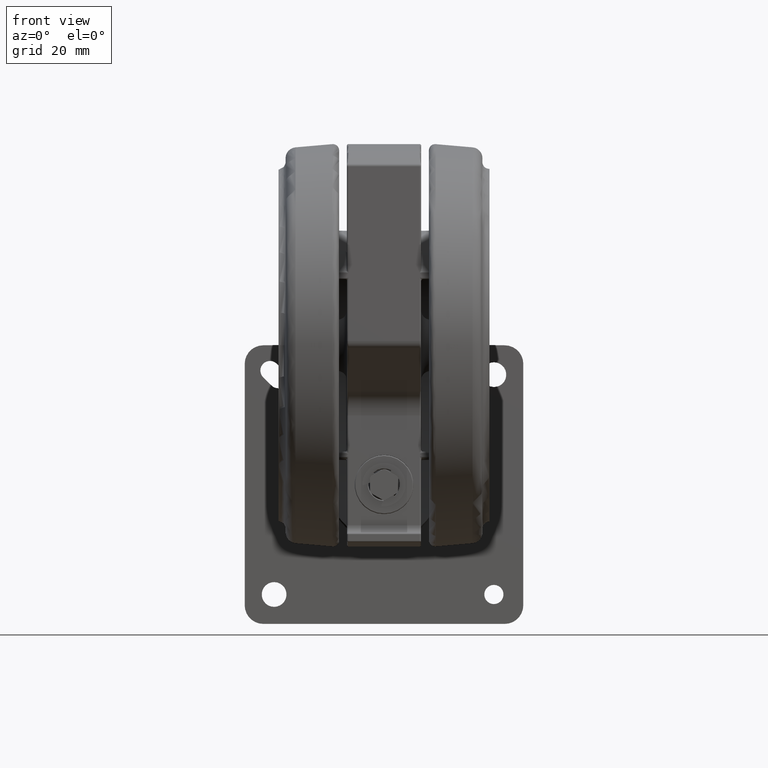
[diagram: clean part render]
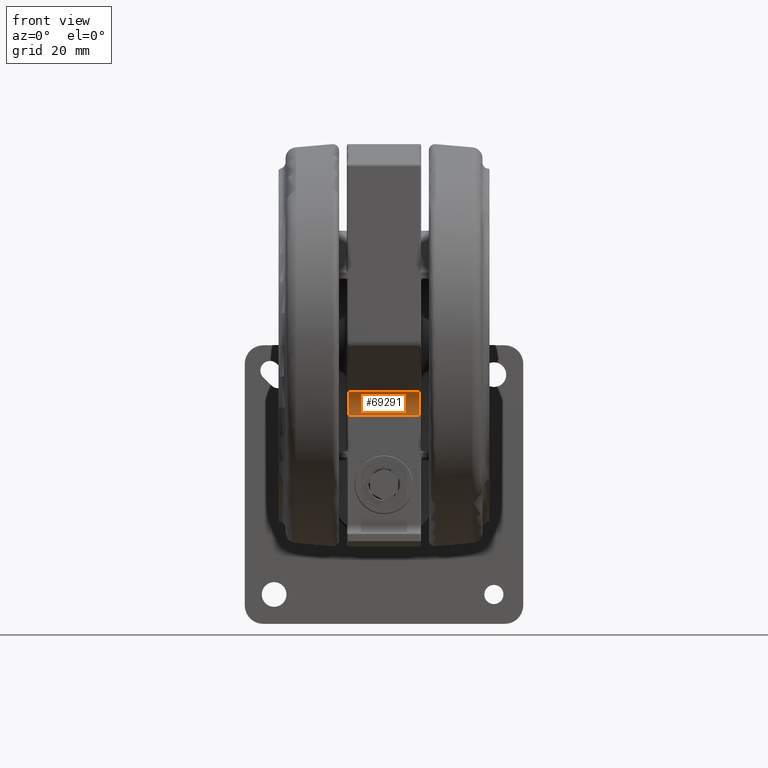
[diagram: same view with one face highlighted and labeled with its STEP entity id]
A machine part, front view. The second image highlights one B-rep face of the part: STEP entity #69291.
In plain terms, the highlighted cylindrical surface (edge-blend (fillet) strip) has radius 10 mm, axis along (1, 0, 0).
Its self-contained STEP definition (entity closure, byte-faithful):
#1258 = VERTEX_POINT ( 'NONE', #71972 ) ;
#2049 = CARTESIAN_POINT ( 'NONE',  ( 14.88478529156210900, -10.73209181583146500, -22.10000000000001200 ) ) ;
#2434 = EDGE_CURVE ( 'NONE', #47494, #69677, #43973, .T. ) ;
#3145 = CARTESIAN_POINT ( 'NONE',  ( 14.88478529156210900, -10.73209181583146500, -22.60000000000001200 ) ) ;
#7366 = AXIS2_PLACEMENT_3D ( 'NONE', #26658, #66985, #32444 ) ;
#8038 = CARTESIAN_POINT ( 'NONE',  ( 22.47597544480253300, -17.24161038922423800, -22.60000000000001200 ) ) ;
#11405 = CYLINDRICAL_SURFACE ( 'NONE', #35845, 10.00000000000000500 ) ;
#13854 = DIRECTION ( 'NONE',  ( 0.9999426917550609000, -0.01070575572499100400, 0.0000000000000000000 ) ) ;
#15387 = CARTESIAN_POINT ( 'NONE',  ( 22.58303300205244600, -7.242183471673623500, -45.60000000000001600 ) ) ;
#17447 = CARTESIAN_POINT ( 'NONE',  ( 22.58303300205244600, -7.242183471673623500, -52.10100000000000600 ) ) ;
#19105 = EDGE_CURVE ( 'NONE', #1258, #25635, #69600, .T. ) ;
#25635 = VERTEX_POINT ( 'NONE', #3145 ) ;
#26658 = CARTESIAN_POINT ( 'NONE',  ( 22.47597544480253300, -17.24161038922423800, -45.60000000000001600 ) ) ;
#28454 = FACE_OUTER_BOUND ( 'NONE', #65541, .T. ) ;
#28961 = DIRECTION ( 'NONE',  ( -0.0000000000000000000, -0.0000000000000000000, -1.000000000000000000 ) ) ;
#32444 = DIRECTION ( 'NONE',  ( 0.9999426917550609000, -0.01070575572499100400, 0.0000000000000000000 ) ) ;
#34492 = DIRECTION ( 'NONE',  ( 0.0000000000000000000, 0.0000000000000000000, 1.000000000000000000 ) ) ;
#35845 = AXIS2_PLACEMENT_3D ( 'NONE', #45849, #34492, #69036 ) ;
#37095 = LINE ( 'NONE', #2049, #50655 ) ;
#42202 = EDGE_CURVE ( 'NONE', #47494, #25635, #37095, .T. ) ;
#43973 = CIRCLE ( 'NONE', #7366, 10.00000000000000500 ) ;
#45849 = CARTESIAN_POINT ( 'NONE',  ( 22.47597544480253300, -17.24161038922423800, -22.10000000000001200 ) ) ;
#46440 = AXIS2_PLACEMENT_3D ( 'NONE', #8038, #48277, #13854 ) ;
#47494 = VERTEX_POINT ( 'NONE', #68668 ) ;
#47702 = LINE ( 'NONE', #17447, #72946 ) ;
#48277 = DIRECTION ( 'NONE',  ( 0.0000000000000000000, 0.0000000000000000000, 1.000000000000000000 ) ) ;
#48428 = ORIENTED_EDGE ( 'NONE', *, *, #42202, .F. ) ;
#50655 = VECTOR ( 'NONE', #53876, 1000.000000000000000 ) ;
#50891 = ORIENTED_EDGE ( 'NONE', *, *, #19105, .T. ) ;
#53211 = ORIENTED_EDGE ( 'NONE', *, *, #73653, .F. ) ;
#53876 = DIRECTION ( 'NONE',  ( 0.0000000000000000000, 0.0000000000000000000, 1.000000000000000000 ) ) ;
#65541 = EDGE_LOOP ( 'NONE', ( #48428, #66724, #53211, #50891 ) ) ;
#66724 = ORIENTED_EDGE ( 'NONE', *, *, #2434, .T. ) ;
#66985 = DIRECTION ( 'NONE',  ( -0.0000000000000000000, -0.0000000000000000000, -1.000000000000000000 ) ) ;
#68668 = CARTESIAN_POINT ( 'NONE',  ( 14.88478529156210900, -10.73209181583146500, -45.60000000000001600 ) ) ;
#69036 = DIRECTION ( 'NONE',  ( 0.9999426917550609000, -0.01070575572499100400, 0.0000000000000000000 ) ) ;
#69291 = ADVANCED_FACE ( 'NONE', ( #28454 ), #11405, .F. ) ;
#69600 = CIRCLE ( 'NONE', #46440, 10.00000000000000500 ) ;
#69677 = VERTEX_POINT ( 'NONE', #15387 ) ;
#71972 = CARTESIAN_POINT ( 'NONE',  ( 22.58303300205244600, -7.242183471673623500, -22.60000000000001200 ) ) ;
#72946 = VECTOR ( 'NONE', #28961, 1000.000000000000000 ) ;
#73653 = EDGE_CURVE ( 'NONE', #1258, #69677, #47702, .T. ) ;